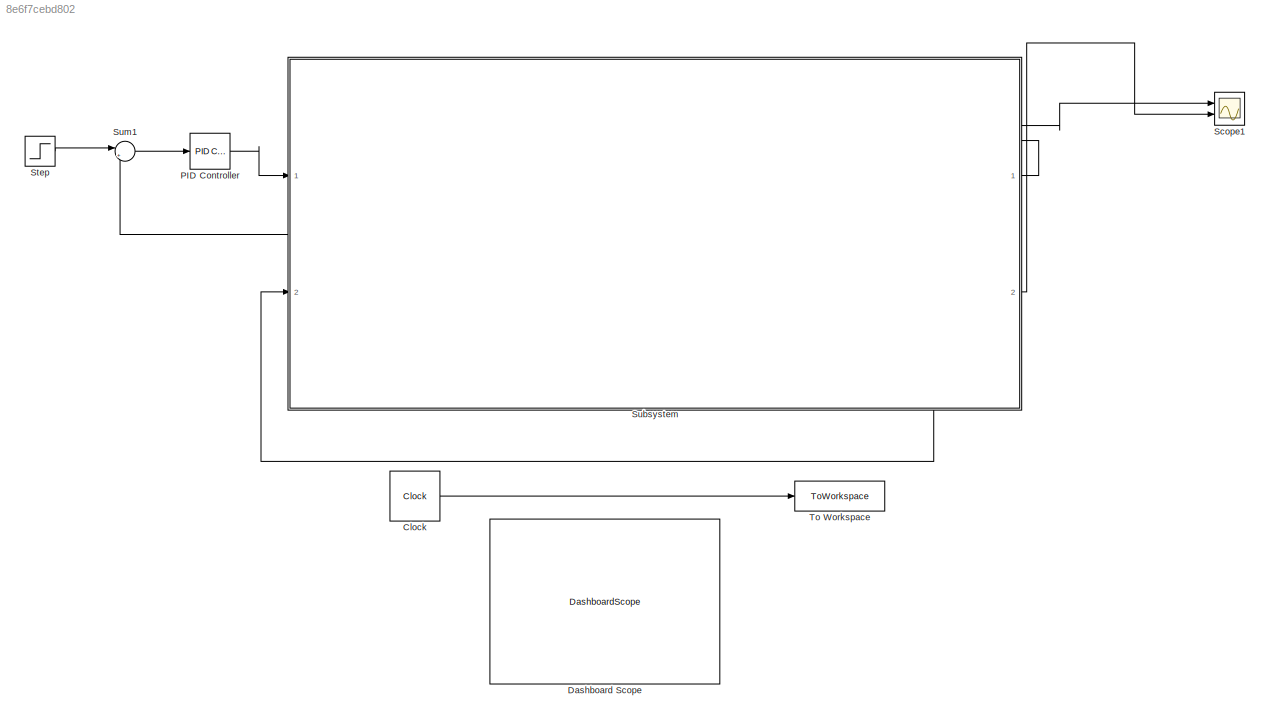
MODEL slx_8e6f7cebd802
KIND model
CONFIG AbsTol = auto
CONFIG EnableMultiTasking = off
CONFIG FixedStep = auto
CONFIG MaxStep = 0.001
CONFIG MinStep = auto
CONFIG RelTol = 1e-3
CONFIG SampleTimeConstraint = Unconstrained
CONFIG SolverName = ode4
CONFIG StartTime = 0
CONFIG StopTime = 1.0
BLOCK [Clock] Clock
BLOCK [DashboardScope] Dashboard Scope
BLOCK [Reference] PID Controller  REF=pid_lib/PID Controller
  Ports = [1, 1]
  SourceBlock = pid_lib/PID Controller
  SourceType = PID 1dof
BLOCK [Scope] Scope1
  Floating = off
  NumInputPorts = 2
  Ports = [2]
  ScopeSpecificationString = Simulink.scopes.TimeScopeBlockCfg('CurrentConfiguration', extmgr.ConfigurationSet(extmgr.Configuration('Core','General UI',true),extmgr.Configuration('Core','Source UI',true),extmgr.Configuration('Sources','WiredSimulink',true,'DataLoggingVariableName','ScopeData1'),extmgr.Configuration('Visuals','Time Domain',true,'SerializedDisplays',{struct('MinYLimReal','-10.08025','MaxYLimReal','10.06986','YL...<+1771ch>
BLOCK [Step] Step
  SampleTime = 0
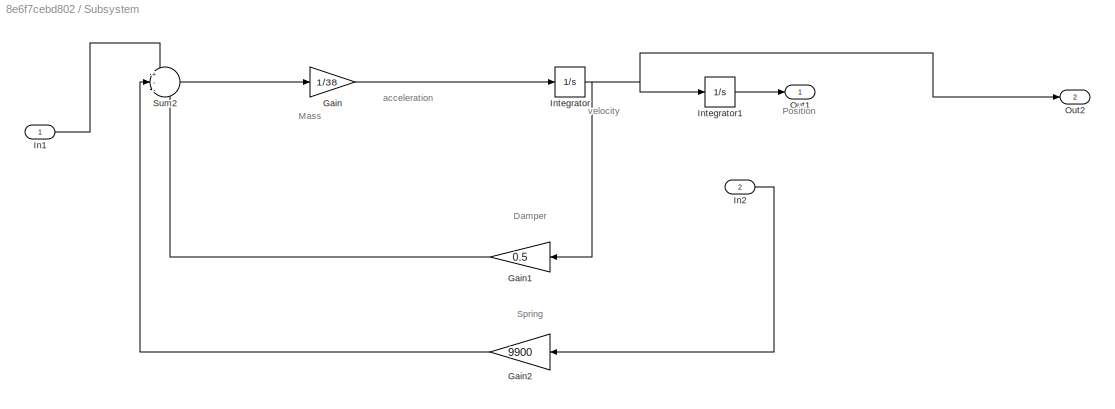
BLOCK [SubSystem] Subsystem
  Ports = [2, 2]
BLOCK [Gain] Subsystem/Gain
  Gain = 1/38
BLOCK [Gain] Subsystem/Gain1
  Gain = 0.5
  NameLocation = top
BLOCK [Gain] Subsystem/Gain2
  Gain = 9900
  NameLocation = top
BLOCK [Inport] Subsystem/In1
BLOCK [Inport] Subsystem/In2
  Port = 2
BLOCK [Integrator] Subsystem/Integrator
  Ports = [1, 1]
BLOCK [Integrator] Subsystem/Integrator1
  InitialCondition = 0.5
  Ports = [1, 1]
BLOCK [Outport] Subsystem/Out1
BLOCK [Outport] Subsystem/Out2
  Port = 2
BLOCK [Sum] Subsystem/Sum2
  Inputs = +--
  Ports = [3, 1]
BLOCK [Sum] Sum1
  Inputs = |+-
  Ports = [2, 1]
BLOCK [ToWorkspace] To Workspace
  FixptAsFi = on
  MaxDataPoints = inf
  Ports = [1]
  SampleTime = -1
  SaveFormat = Timeseries
  VariableName = simout
ANNOTATION Subsystem: Damper
ANNOTATION Subsystem: Mass
ANNOTATION Subsystem: Position
ANNOTATION Subsystem: Spring
ANNOTATION Subsystem: acceleration
ANNOTATION Subsystem: velocity
LINE Clock:1 -> To Workspace:1
LINE PID Controller:1 -> Subsystem:1
LINE Step:1 -> Sum1:1
LINE Subsystem/Gain1:1 -> Subsystem/Sum2:3
LINE Subsystem/Gain2:1 -> Subsystem/Sum2:2
LINE Subsystem/Gain:1 -> Subsystem/Integrator:1
LINE Subsystem/In1:1 -> Subsystem/Sum2:1
LINE Subsystem/In2:1 -> Subsystem/Gain2:1
LINE Subsystem/Integrator1:1 -> Subsystem/Out1:1
NET Subsystem/Integrator:1 -> Subsystem/Gain1:1, Subsystem/Integrator1:1, Subsystem/Out2:1
LINE Subsystem/Sum2:1 -> Subsystem/Gain:1
NET Subsystem:1 -> Scope1:1, Subsystem:2, Sum1:2
LINE Subsystem:2 -> Scope1:2
LINE Sum1:1 -> PID Controller:1
note: NET lines group one-source signal fan-out (src -> all destinations, sorted); 1:1 wires keep LINE
